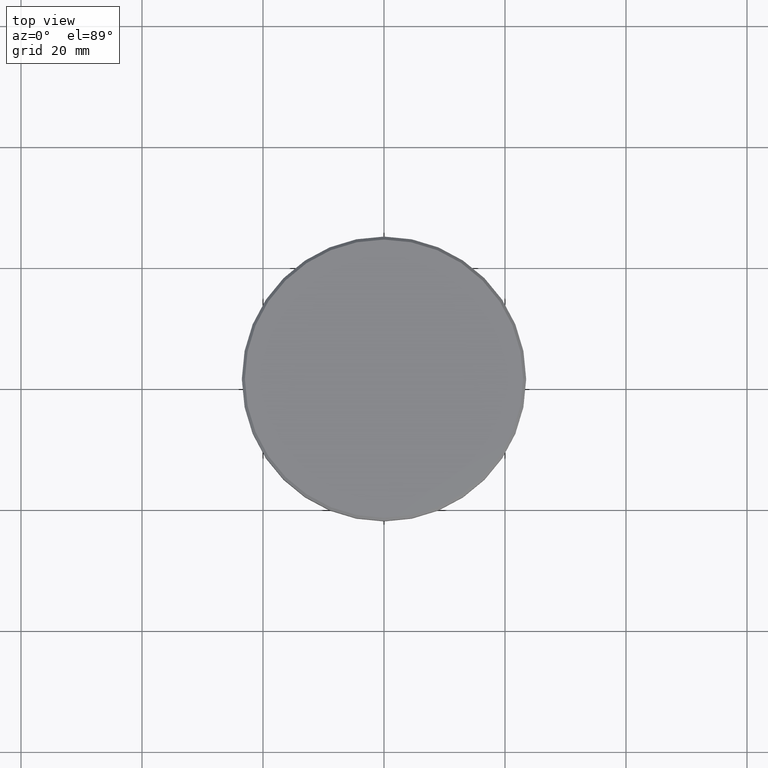
[diagram: clean part render]
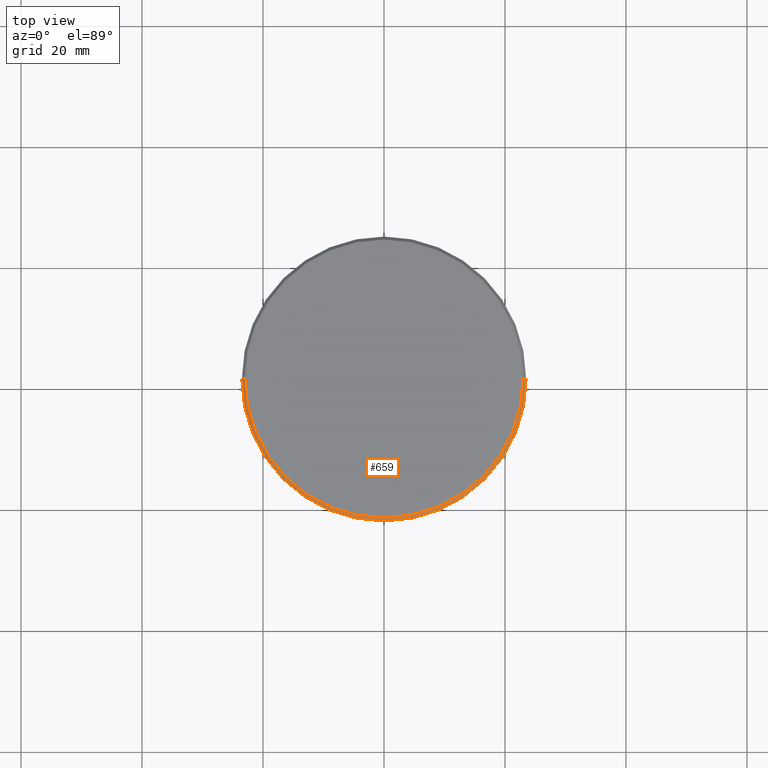
[diagram: same view with one face highlighted and labeled with its STEP entity id]
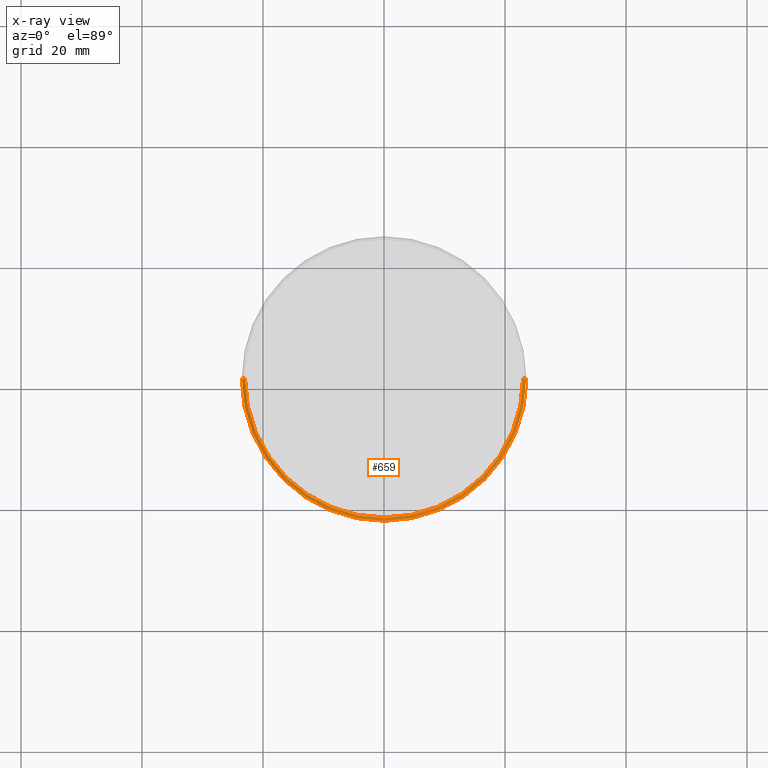
[diagram: x-ray of the same camera — body ghosted, the highlighted face saturated]
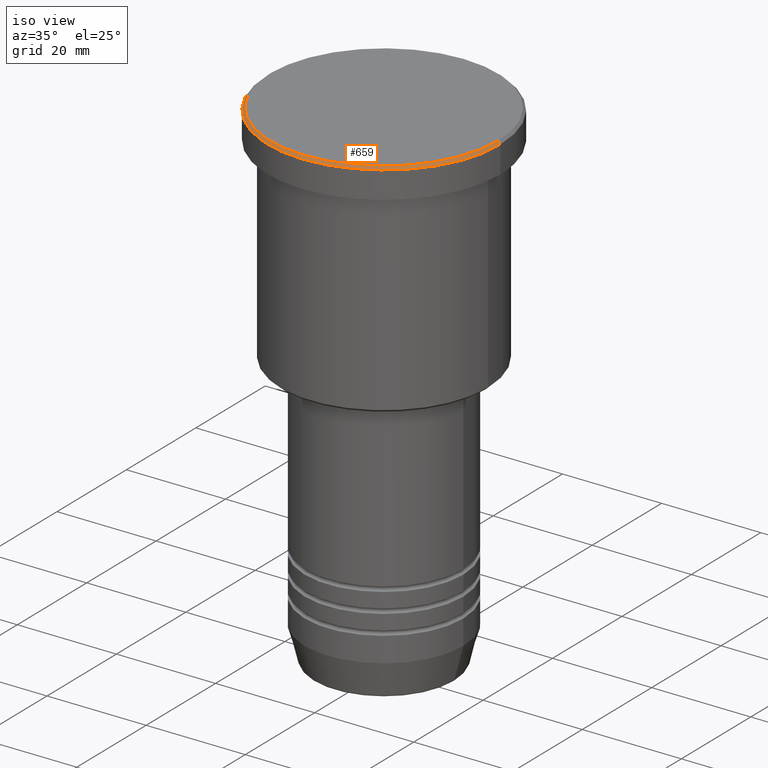
[diagram: same view with one face highlighted and labeled with its STEP entity id]
A machine part, top view. The second image highlights one B-rep face of the part: STEP entity #659.
The next image is the same camera in x-ray: the body ghosted, the highlighted face saturated — about 0% of this face is hidden behind the body in this view.
A second angle (iso view) of the same face is appended — the face is thin or edge-on in the first view.
In plain terms, the highlighted conical surface has half-angle 45 deg.
Its self-contained STEP definition (entity closure, byte-faithful):
#54 = DIRECTION ( 'NONE',  ( -0.000000000000000000, -0.000000000000000000, 1.000000000000000000 ) ) ;
#62 = EDGE_CURVE ( 'NONE', #1076, #422, #1132, .T. ) ;
#63 = VECTOR ( 'NONE', #853, 1000.000000000000000 ) ;
#107 = DIRECTION ( 'NONE',  ( 0.000000000000000000, 0.000000000000000000, -1.000000000000000000 ) ) ;
#125 = CARTESIAN_POINT ( 'NONE',  ( -22.99999999999998224, 0.000000000000000000, 0.000000000000000000 ) ) ;
#160 = EDGE_CURVE ( 'NONE', #1076, #162, #857, .T. ) ;
#162 = VERTEX_POINT ( 'NONE', #906 ) ;
#181 = LINE ( 'NONE', #278, #63 ) ;
#210 = ORIENTED_EDGE ( 'NONE', *, *, #1069, .F. ) ;
#259 = FACE_OUTER_BOUND ( 'NONE', #547, .T. ) ;
#278 = CARTESIAN_POINT ( 'NONE',  ( 22.99999999999998224, 2.816687638038910380E-15, 0.000000000000000000 ) ) ;
#307 = EDGE_CURVE ( 'NONE', #652, #422, #685, .T. ) ;
#308 = ORIENTED_EDGE ( 'NONE', *, *, #160, .F. ) ;
#325 = DIRECTION ( 'NONE',  ( 0.000000000000000000, 0.000000000000000000, -1.000000000000000000 ) ) ;
#360 = CARTESIAN_POINT ( 'NONE',  ( -22.99999999999998224, 0.000000000000000000, 0.000000000000000000 ) ) ;
#372 = CARTESIAN_POINT ( 'NONE',  ( 0.000000000000000000, 0.000000000000000000, -0.5000000000000281997 ) ) ;
#397 = AXIS2_PLACEMENT_3D ( 'NONE', #729, #325, #705 ) ;
#422 = VERTEX_POINT ( 'NONE', #871 ) ;
#516 = CARTESIAN_POINT ( 'NONE',  ( 23.50000000000000000, 0.000000000000000000, -0.5000000000000281997 ) ) ;
#547 = EDGE_LOOP ( 'NONE', ( #210, #308, #859, #1053 ) ) ;
#652 = VERTEX_POINT ( 'NONE', #516 ) ;
#659 = ADVANCED_FACE ( 'NONE', ( #259 ), #742, .T. ) ;
#685 = CIRCLE ( 'NONE', #701, 23.50000000000000000 ) ;
#701 = AXIS2_PLACEMENT_3D ( 'NONE', #372, #107, #1007 ) ;
#705 = DIRECTION ( 'NONE',  ( -1.000000000000000000, 0.000000000000000000, 0.000000000000000000 ) ) ;
#729 = CARTESIAN_POINT ( 'NONE',  ( 0.000000000000000000, 0.000000000000000000, 0.000000000000000000 ) ) ;
#742 = CONICAL_SURFACE ( 'NONE', #397, 22.99999999999998224, 0.7853981633974378429 ) ;
#783 = AXIS2_PLACEMENT_3D ( 'NONE', #961, #54, #814 ) ;
#814 = DIRECTION ( 'NONE',  ( 1.000000000000000000, 0.000000000000000000, 0.000000000000000000 ) ) ;
#853 = DIRECTION ( 'NONE',  ( 0.7071067811865401342, 8.659560562354842879E-17, -0.7071067811865549002 ) ) ;
#857 = CIRCLE ( 'NONE', #783, 22.99999999999998224 ) ;
#859 = ORIENTED_EDGE ( 'NONE', *, *, #62, .T. ) ;
#871 = CARTESIAN_POINT ( 'NONE',  ( -23.50000000000000000, 2.877919977996280320E-15, -0.5000000000000281997 ) ) ;
#906 = CARTESIAN_POINT ( 'NONE',  ( 22.99999999999998224, 2.847303808017595350E-15, 0.000000000000000000 ) ) ;
#934 = DIRECTION ( 'NONE',  ( -0.7071067811865401342, 0.000000000000000000, -0.7071067811865549002 ) ) ;
#961 = CARTESIAN_POINT ( 'NONE',  ( 0.000000000000000000, 0.000000000000000000, 0.000000000000000000 ) ) ;
#1007 = DIRECTION ( 'NONE',  ( 1.000000000000000000, 0.000000000000000000, 0.000000000000000000 ) ) ;
#1053 = ORIENTED_EDGE ( 'NONE', *, *, #307, .F. ) ;
#1069 = EDGE_CURVE ( 'NONE', #162, #652, #181, .T. ) ;
#1076 = VERTEX_POINT ( 'NONE', #360 ) ;
#1132 = LINE ( 'NONE', #125, #1137 ) ;
#1137 = VECTOR ( 'NONE', #934, 1000.000000000000000 ) ;